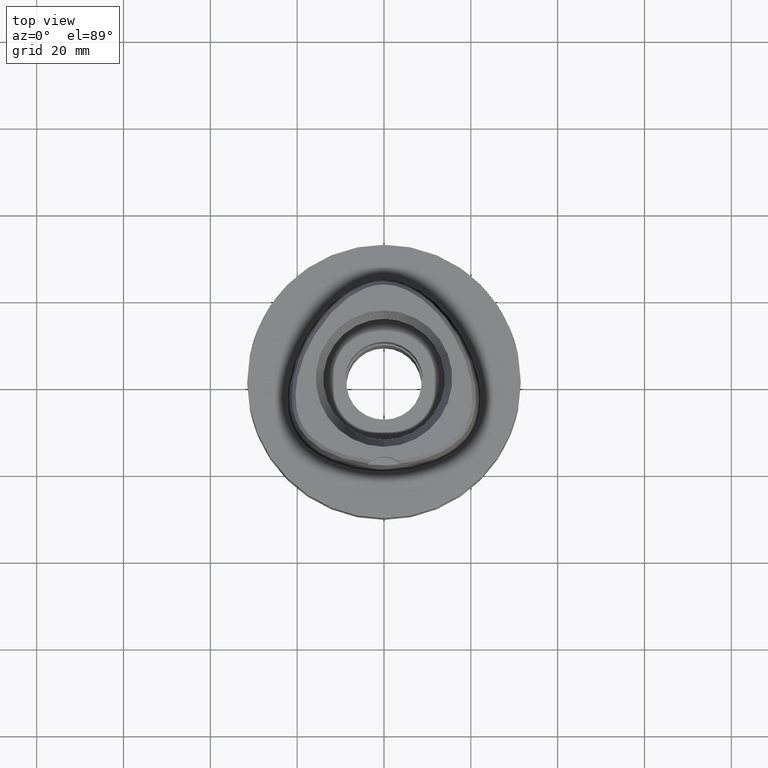
[diagram: clean part render]
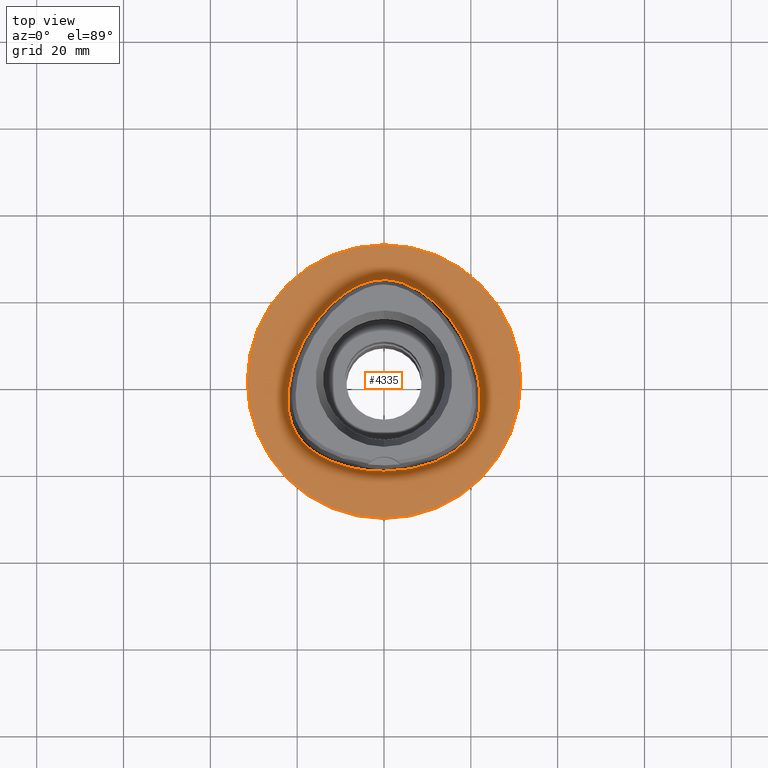
[diagram: same view with one face highlighted and labeled with its STEP entity id]
A machine part, top view. The second image highlights one B-rep face of the part: STEP entity #4335.
In plain terms, the highlighted planar face has unit normal (0, 0, -1).
Its self-contained STEP definition (entity closure, byte-faithful):
#10 = CARTESIAN_POINT ( 'NONE',  ( 0.0000000000000000000, -31.50000000000000000, 0.0000000000000000000 ) ) ;
#46 = CARTESIAN_POINT ( 'NONE',  ( 0.8548392434961373798, 23.47500001676050374, -6.704317588829104835E-07 ) ) ;
#87 = CARTESIAN_POINT ( 'NONE',  ( -2.113823673093606637, -20.67500000048518061, -1.936139383583793117E-08 ) ) ;
#132 = CIRCLE ( 'NONE', #4563, 31.50000000000000000 ) ;
#250 = DIRECTION ( 'NONE',  ( 0.0000000000000000000, 1.000000000000000000, 0.0000000000000000000 ) ) ;
#396 = CARTESIAN_POINT ( 'NONE',  ( 2.564517730401052020, 23.29328126649896546, -6.704317588829104835E-07 ) ) ;
#432 = CARTESIAN_POINT ( 'NONE',  ( 22.05732875988168118, -6.847636721144406913, -6.704317588829104835E-07 ) ) ;
#574 = CARTESIAN_POINT ( 'NONE',  ( -22.24453907903185268, -4.100468749996733386, -1.936139383583793117E-08 ) ) ;
#615 = EDGE_LOOP ( 'NONE', ( #3444, #5459 ) ) ;
#694 = CIRCLE ( 'NONE', #3232, 31.50000000000000000 ) ;
#861 = CARTESIAN_POINT ( 'NONE',  ( -5.098437017463878007, 22.52602539107704516, -1.936139383583793117E-08 ) ) ;
#914 = CARTESIAN_POINT ( 'NONE',  ( 14.40795640245716669, 15.64093751087823314, -6.704317588829104835E-07 ) ) ;
#979 = CARTESIAN_POINT ( 'NONE',  ( -21.55524826055441778, -8.996025390764080143, -1.936139383583793117E-08 ) ) ;
#1012 = CARTESIAN_POINT ( 'NONE',  ( -22.05732874370039198, -6.847636718819056334, -1.936139383583793117E-08 ) ) ;
#1199 = CARTESIAN_POINT ( 'NONE',  ( 0.0000000000000000000, 1.284042168905999827E-14, 0.0000000000000000000 ) ) ;
#1316 = CARTESIAN_POINT ( 'NONE',  ( 20.74942742465746193, 4.657187505714481368, -6.704317588829104835E-07 ) ) ;
#1317 = DIRECTION ( 'NONE',  ( 0.0000000000000000000, 0.0000000000000000000, -1.000000000000000000 ) ) ;
#1343 = EDGE_CURVE ( 'NONE', #5159, #3533, #132, .T. ) ;
#1347 = CARTESIAN_POINT ( 'NONE',  ( 16.95889173633975133, -15.67838868510706973, -6.704317588829104835E-07 ) ) ;
#1406 = CARTESIAN_POINT ( 'NONE',  ( -6.341471019297461709, -20.29812500048721091, -1.936139383583793117E-08 ) ) ;
#1713 = CARTESIAN_POINT ( 'NONE',  ( 11.23259757303450890, -18.89324220332994742, -6.704317588829104835E-07 ) ) ;
#1715 = FACE_OUTER_BOUND ( 'NONE', #615, .T. ) ;
#1721 = CARTESIAN_POINT ( 'NONE',  ( 5.534747782599000141E-11, 23.47499999999000053, 1.254922092168000080E-13 ) ) ;
#1730 = ORIENTED_EDGE ( 'NONE', *, *, #1882, .F. ) ;
#1740 = CARTESIAN_POINT ( 'NONE',  ( 0.0000000000000000000, 1.224646799146999965E-14, 0.0000000000000000000 ) ) ;
#1744 = CARTESIAN_POINT ( 'NONE',  ( -7.571159434596632209, 21.31457031291904158, -1.936139383583793117E-08 ) ) ;
#1822 = CARTESIAN_POINT ( 'NONE',  ( -1.042620445671000137E-11, -20.67499999999999716, 1.284898113832999718E-13 ) ) ;
#1882 = EDGE_CURVE ( 'NONE', #4919, #4683, #5538, .T. ) ;
#2136 = CARTESIAN_POINT ( 'NONE',  ( 6.341471022189880458, -20.29812501659793256, -6.704317588829105894E-07 ) ) ;
#2215 = CARTESIAN_POINT ( 'NONE',  ( 21.97832649445885522, -0.2810937470676990180, -6.704317588829104835E-07 ) ) ;
#2222 = CARTESIAN_POINT ( 'NONE',  ( -18.06826688568742867, 10.43171875024612305, -1.936139383583793117E-08 ) ) ;
#2247 = CARTESIAN_POINT ( 'NONE',  ( 19.64947367221709129, -12.82525391612707466, -6.704317588829104835E-07 ) ) ;
#2255 = CARTESIAN_POINT ( 'NONE',  ( -11.23259756743898841, -18.89324218796141963, -1.936139383583793117E-08 ) ) ;
#2283 = CARTESIAN_POINT ( 'NONE',  ( -20.93173252255640193, -10.60431640645195017, -1.936139383583793117E-08 ) ) ;
#2308 = CARTESIAN_POINT ( 'NONE',  ( -19.64947365902738596, -12.82525390653195352, -1.936139383583793117E-08 ) ) ;
#2618 = CARTESIAN_POINT ( 'NONE',  ( 10.74572892142285419, 19.17433595040339966, -6.704317588829104835E-07 ) ) ;
#2620 = DIRECTION ( 'NONE',  ( 0.0000000000000000000, -1.000000000000000000, 0.0000000000000000000 ) ) ;
#2666 = CARTESIAN_POINT ( 'NONE',  ( 20.34961800011020472, -11.74885743026355733, -6.704317588829104835E-07 ) ) ;
#2698 = CARTESIAN_POINT ( 'NONE',  ( 0.0000000000000000000, 31.50000000000000000, 0.0000000000000000000 ) ) ;
#2708 = CARTESIAN_POINT ( 'NONE',  ( -20.34961798599187688, -11.74885742211361617, -1.936139383583793117E-08 ) ) ;
#2768 = EDGE_CURVE ( 'NONE', #4683, #4919, #5450, .T. ) ;
#2779 = AXIS2_PLACEMENT_3D ( 'NONE', #1740, #1317, #2620 ) ;
#3015 = CARTESIAN_POINT ( 'NONE',  ( -0.8548392423348609714, 23.47500000048928825, -1.936139383583792786E-08 ) ) ;
#3035 = CARTESIAN_POINT ( 'NONE',  ( 5.534747782599000141E-11, 23.47499999999000053, 1.254922092168000080E-13 ) ) ;
#3144 = CARTESIAN_POINT ( 'NONE',  ( -1.042620445671000137E-11, -20.67499999999999716, 1.284898113832999718E-13 ) ) ;
#3232 = AXIS2_PLACEMENT_3D ( 'NONE', #1199, #4572, #250 ) ;
#3411 = FACE_BOUND ( 'NONE', #5157, .T. ) ;
#3436 = CARTESIAN_POINT ( 'NONE',  ( 2.113823674063530778, -20.67500001675610122, -6.704317588829103776E-07 ) ) ;
#3444 = ORIENTED_EDGE ( 'NONE', *, *, #3686, .F. ) ;
#3470 = CARTESIAN_POINT ( 'NONE',  ( 0.0000000000000000000, 1.284042168905999827E-14, 0.0000000000000000000 ) ) ;
#3533 = VERTEX_POINT ( 'NONE', #2698 ) ;
#3552 = CARTESIAN_POINT ( 'NONE',  ( 5.098437023540008717, 22.52602540625645133, -6.704317588829104835E-07 ) ) ;
#3558 = CARTESIAN_POINT ( 'NONE',  ( -1.042620445671000137E-11, -20.67499999999999716, 1.284898113832999718E-13 ) ) ;
#3618 = CARTESIAN_POINT ( 'NONE',  ( -14.67337964443183296, -17.21410156292554561, -1.936139383583793117E-08 ) ) ;
#3686 = EDGE_CURVE ( 'NONE', #3533, #5159, #694, .T. ) ;
#3934 = CARTESIAN_POINT ( 'NONE',  ( 7.571159442842092524, 21.31457032700676635, -6.704317588829104835E-07 ) ) ;
#3956 = CARTESIAN_POINT ( 'NONE',  ( 5.534747782599000141E-11, 23.47499999999000053, 1.254922092168000080E-13 ) ) ;
#3972 = CARTESIAN_POINT ( 'NONE',  ( -10.74572891090238436, 19.17433593787038859, -1.936139383583793117E-08 ) ) ;
#4024 = CARTESIAN_POINT ( 'NONE',  ( -16.95889172623624930, -15.67838867225212418, -1.936139383583793117E-08 ) ) ;
#4335 = ADVANCED_FACE ( 'NONE', ( #1715, #3411 ), #5100, .F. ) ;
#4336 = DIRECTION ( 'NONE',  ( 0.0000000000000000000, -1.000000000000000000, 0.0000000000000000000 ) ) ;
#4375 = CARTESIAN_POINT ( 'NONE',  ( 18.06826689985112111, 10.43171875842249108, -6.704317588829104835E-07 ) ) ;
#4410 = CARTESIAN_POINT ( 'NONE',  ( -18.56841065177838956, -14.16937988315053865, -1.936139383583793117E-08 ) ) ;
#4418 = ORIENTED_EDGE ( 'NONE', *, *, #2768, .F. ) ;
#4439 = CARTESIAN_POINT ( 'NONE',  ( -21.97832647834290043, -0.2810937499153365882, -1.936139383583793117E-08 ) ) ;
#4563 = AXIS2_PLACEMENT_3D ( 'NONE', #3470, #5150, #4336 ) ;
#4572 = DIRECTION ( 'NONE',  ( 0.0000000000000000000, 0.0000000000000000000, -1.000000000000000000 ) ) ;
#4683 = VERTEX_POINT ( 'NONE', #3956 ) ;
#4714 = CARTESIAN_POINT ( 'NONE',  ( 14.67337965251771514, -17.21410157711000721, -6.704317588829104835E-07 ) ) ;
#4720 = CARTESIAN_POINT ( 'NONE',  ( -2.564517727056281338, 23.29328125048219533, -1.936139383583793117E-08 ) ) ;
#4774 = CARTESIAN_POINT ( 'NONE',  ( 20.93173253746063267, -10.60431641307271988, -6.704317588829104835E-07 ) ) ;
#4827 = CARTESIAN_POINT ( 'NONE',  ( -20.74942740925061457, 4.657187500164842398, -1.936139383583793117E-08 ) ) ;
#4919 = VERTEX_POINT ( 'NONE', #3144 ) ;
#5100 = PLANE ( 'NONE',  #2779 ) ;
#5122 = CARTESIAN_POINT ( 'NONE',  ( 22.24453909536158847, -4.100468749901521548, -6.704317588829104835E-07 ) ) ;
#5146 = CARTESIAN_POINT ( 'NONE',  ( 21.55524827622200590, -8.996025395416662462, -6.704317588829104835E-07 ) ) ;
#5150 = DIRECTION ( 'NONE',  ( 0.0000000000000000000, 0.0000000000000000000, -1.000000000000000000 ) ) ;
#5157 = EDGE_LOOP ( 'NONE', ( #4418, #1730 ) ) ;
#5159 = VERTEX_POINT ( 'NONE', #10 ) ;
#5296 = CARTESIAN_POINT ( 'NONE',  ( -14.40795638995207462, 15.64093750031059926, -1.936139383583793117E-08 ) ) ;
#5450 = B_SPLINE_CURVE_WITH_KNOTS ( 'NONE', 3,
 ( #1721, #3015, #4720, #861, #1744, #3972, #5296, #2222, #4827, #4439, #574, #1012, #979, #2283, #2708, #2308, #4410, #4024, #3618, #2255, #1406, #87, #3558 ),
 .UNSPECIFIED., .F., .F.,
 ( 4, 1, 1, 1, 1, 1, 1, 1, 1, 1, 1, 1, 1, 1, 1, 1, 1, 1, 1, 1, 4 ),
 ( 0.0000000000000000000, 0.04166666666751999565, 0.08333333333413001087, 0.1250000000007999990, 0.1666666666674000152, 0.2500000000006000200, 0.3333333333337999971, 0.4166666666671000052, 0.5000000000002999823, 0.5416666666670000296, 0.5833333333335000148, 0.6250000000001999512, 0.6458333333335000148, 0.6666666666667999674, 0.6875000000001000311, 0.7083333333333999837, 0.7500000000000000000, 0.7916666666667000474, 0.8333333333333000637, 0.9166666666666000163, 1.000000000000000000 ),
 .UNSPECIFIED. ) ;
#5459 = ORIENTED_EDGE ( 'NONE', *, *, #1343, .F. ) ;
#5538 = B_SPLINE_CURVE_WITH_KNOTS ( 'NONE', 3,
 ( #1822, #3436, #2136, #1713, #4714, #1347, #5542, #2247, #2666, #4774, #5146, #432, #5122, #2215, #1316, #4375, #914, #2618, #3934, #3552, #396, #46, #3035 ),
 .UNSPECIFIED., .F., .F.,
 ( 4, 1, 1, 1, 1, 1, 1, 1, 1, 1, 1, 1, 1, 1, 1, 1, 1, 1, 1, 1, 4 ),
 ( 0.0000000000000000000, 0.08333333333343000138, 0.1666666666668000230, 0.2083333333333000081, 0.2500000000000000000, 0.2916666666666999919, 0.3125000000000000000, 0.3333333333333000081, 0.3541666666666999919, 0.3750000000000000000, 0.4166666666666000163, 0.4583333333332000326, 0.4999999999998999689, 0.5833333333332000326, 0.6666666666664999852, 0.7499999999998000488, 0.8333333333329999704, 0.8749999999997000177, 0.9166666666664000651, 0.9583333333329999704, 1.000000000000000000 ),
 .UNSPECIFIED. ) ;
#5542 = CARTESIAN_POINT ( 'NONE',  ( 18.56841066362533610, -14.16937989437063194, -6.704317588829104835E-07 ) ) ;